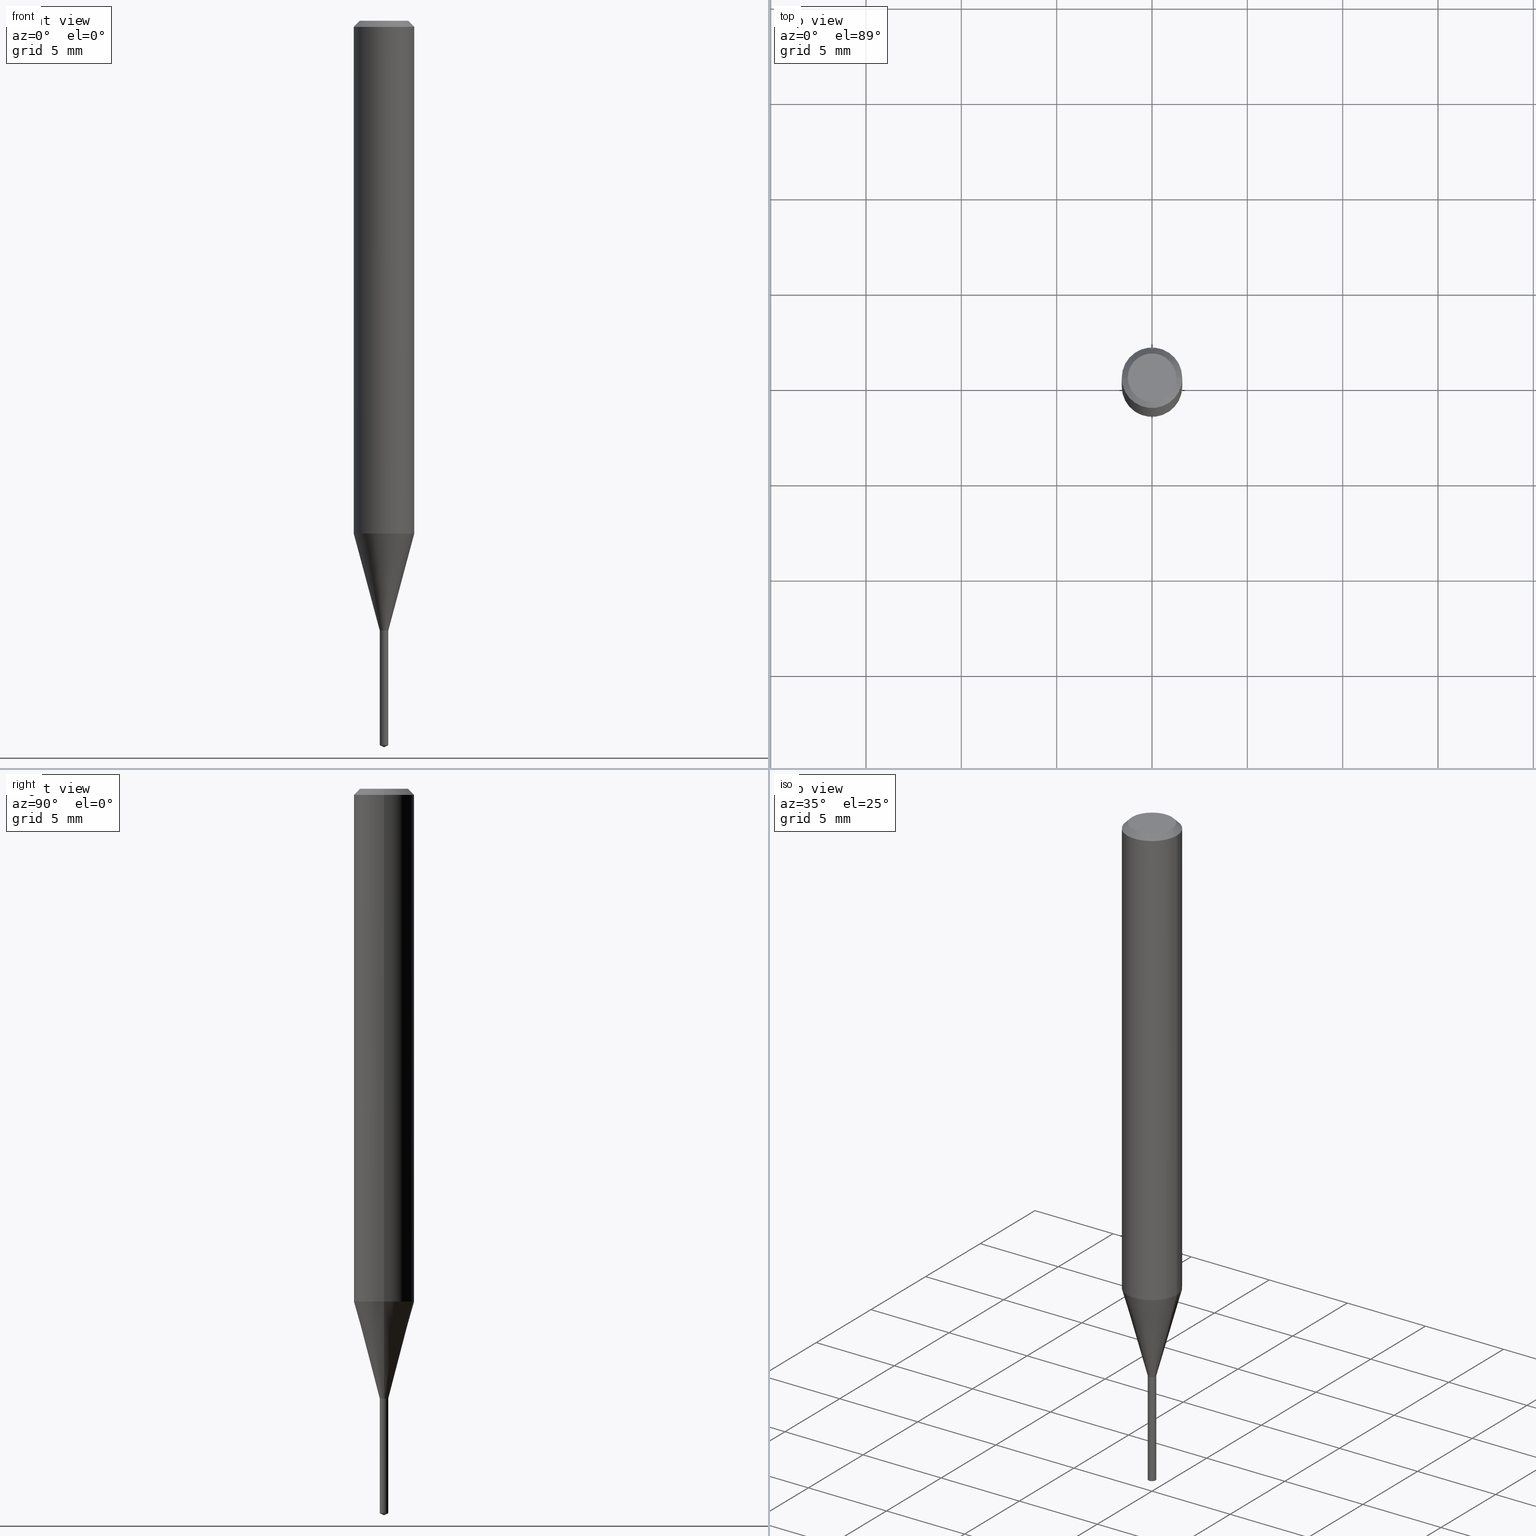
[diagram: canonical four-view strip — front | top / right | iso, engineering-drawing reading convention]
A machine part, canonical four-view strip (front | top / right | iso — engineering-drawing reading convention). The complete STEP part file that produces these views, byte-faithful:
ISO-10303-21;
HEADER;
FILE_DESCRIPTION (( 'STEP AP203' ),
    '1' );
FILE_NAME ('07137.STEP',
    '2024-04-23T19:39:51',
    ( '' ),
    ( '' ),
    'SwSTEP 2.0',
    'SolidWorks 2023',
    '' );
FILE_SCHEMA (( 'CONFIG_CONTROL_DESIGN' ));
ENDSEC;

DATA;
#1 = FACE_OUTER_BOUND ( 'NONE', #304, .T. ) ;
#2 = ORIENTED_EDGE ( 'NONE', *, *, #170, .T. ) ;
#3 = EDGE_CURVE ( 'NONE', #420, #315, #444, .T. ) ;
#4 = LINE ( 'NONE', #314, #151 ) ;
#5 = ORIENTED_EDGE ( 'NONE', *, *, #307, .F. ) ;
#6 = VECTOR ( 'NONE', #362, 39.37007874015748854 ) ;
#7 = DIRECTION ( 'NONE',  ( -2.445468806185136877E-29, 3.491481338843145188E-15, 1.000000000000000000 ) ) ;
#8 = ORIENTED_EDGE ( 'NONE', *, *, #148, .T. ) ;
#9 = DIRECTION ( 'NONE',  ( 1.000000000000000000, -6.982962677686217801E-15, 0.000000000000000000 ) ) ;
#10 = ORIENTED_EDGE ( 'NONE', *, *, #402, .T. ) ;
#11 = DATE_AND_TIME ( #171, #441 ) ;
#12 = ORIENTED_EDGE ( 'NONE', *, *, #325, .F. ) ;
#13 = AXIS2_PLACEMENT_3D ( 'NONE', #24, #446, #259 ) ;
#14 = ORIENTED_EDGE ( 'NONE', *, *, #88, .F. ) ;
#15 = COORDINATED_UNIVERSAL_TIME_OFFSET ( 5, 0, .BEHIND. ) ;
#16 = CARTESIAN_POINT ( 'NONE',  ( 6.288303211479943643E-17, 0.008849999999995637398, -1.250000000000000000 ) ) ;
#17 = MECHANICAL_CONTEXT ( 'NONE', #376, 'mechanical' ) ;
#18 = EDGE_CURVE ( 'NONE', #206, #130, #51, .T. ) ;
#19 = ORIENTED_EDGE ( 'NONE', *, *, #116, .T. ) ;
#20 =( NAMED_UNIT ( * ) SI_UNIT ( $, .STERADIAN. ) SOLID_ANGLE_UNIT ( ) );
#21 = AXIS2_PLACEMENT_3D ( 'NONE', #369, #224, #303 ) ;
#22 = FACE_OUTER_BOUND ( 'NONE', #90, .T. ) ;
#23 = CARTESIAN_POINT ( 'NONE',  ( 3.055613273328328505E-29, -4.362605932884510968E-15, -1.249500000000000055 ) ) ;
#24 = CARTESIAN_POINT ( 'NONE',  ( 3.055613273328328505E-29, -4.362605932884510968E-15, -1.249500000000000055 ) ) ;
#25 = ORIENTED_EDGE ( 'NONE', *, *, #48, .T. ) ;
#26 = EDGE_CURVE ( 'NONE', #47, #200, #431, .T. ) ;
#27 = VECTOR ( 'NONE', #41, 39.37007874015748143 ) ;
#28 = CARTESIAN_POINT ( 'NONE',  ( -0.008850000000000000228, -4.316307437129247394E-15, -1.259000000000000119 ) ) ;
#29 = ADVANCED_BREP_SHAPE_REPRESENTATION ( '07137', ( #241, #406, #127 ), #178 ) ;
#30 = ORIENTED_EDGE ( 'NONE', *, *, #251, .F. ) ;
#31 = DIRECTION ( 'NONE',  ( -2.445468806185136877E-29, 3.491481338843145188E-15, 1.000000000000000000 ) ) ;
#32 = CARTESIAN_POINT ( 'NONE',  ( 3.657123408791909676E-29, -5.224227846641668931E-15, -1.495873177225328643 ) ) ;
#33 = EDGE_CURVE ( 'NONE', #86, #330, #91, .T. ) ;
#34 = CARTESIAN_POINT ( 'NONE',  ( 2.589202394846235411E-29, -3.696694810103098248E-15, -1.058775474173935471 ) ) ;
#35 = LOCAL_TIME ( 15, 39, 51.00000000000000000, #322 ) ;
#36 = CONICAL_SURFACE ( 'NONE', #21, 0.008349999999999999784, 0.7853981633975486432 ) ;
#37 = DIRECTION ( 'NONE',  ( 1.000000000000000000, -6.982962677686265922E-15, 4.876194921942043128E-29 ) ) ;
#38 = EDGE_LOOP ( 'NONE', ( #126, #454, #271, #388 ) ) ;
#39 = DIRECTION ( 'NONE',  ( -6.982962677686265133E-15, -1.000000000000000000, 0.000000000000000000 ) ) ;
#40 = ORIENTED_EDGE ( 'NONE', *, *, #132, .F. ) ;
#41 = DIRECTION ( 'NONE',  ( 6.439704144417068218E-15, 0.9063077870366574862, 0.4226182617406830100 ) ) ;
#42 = VERTEX_POINT ( 'NONE', #323 ) ;
#43 = AXIS2_PLACEMENT_3D ( 'NONE', #320, #404, #475 ) ;
#44 = DIRECTION ( 'NONE',  ( 1.000000000000000000, -6.982962677686217801E-15, 0.000000000000000000 ) ) ;
#45 = ORIENTED_EDGE ( 'NONE', *, *, #209, .T. ) ;
#46 = DATE_AND_TIME ( #329, #95 ) ;
#47 = VERTEX_POINT ( 'NONE', #214 ) ;
#48 = EDGE_CURVE ( 'NONE', #330, #189, #436, .T. ) ;
#49 = DIRECTION ( 'NONE',  ( 1.000000000000000000, -6.982962677686266711E-15, 4.876176775795935793E-29 ) ) ;
#50 = PERSON ( 'UNSPECIFIED', 'UNSPECIFIED', 'UNSPECIFIED', ('UNSPECIFIED'), ('UNSPECIFIED'), ('UNSPECIFIED') ) ;
#51 = CIRCLE ( 'NONE', #474, 0.008850000000000000228 ) ;
#52 = AXIS2_PLACEMENT_3D ( 'NONE', #122, #316, #163 ) ;
#53 = ORIENTED_EDGE ( 'NONE', *, *, #33, .F. ) ;
#54 = ADVANCED_FACE ( 'NONE', ( #93 ), #473, .F. ) ;
#55 = LINE ( 'NONE', #215, #465 ) ;
#56 = CARTESIAN_POINT ( 'NONE',  ( -9.245293313918838015E-28, 1.324477397370918293E-13, 37.87007874015748143 ) ) ;
#57 = COORDINATED_UNIVERSAL_TIME_OFFSET ( 5, 0, .BEHIND. ) ;
#58 = CARTESIAN_POINT ( 'NONE',  ( 0.008849999999999998493, -4.424405152582034561E-15, -1.249500000000000055 ) ) ;
#59 = CC_DESIGN_APPROVAL ( #263, ( #352 ) ) ;
#60 = CIRCLE ( 'NONE', #80, 0.008850000000000001962 ) ;
#61 = CARTESIAN_POINT ( 'NONE',  ( 0.000000000000000000, 0.000000000000000000, 0.000000000000000000 ) ) ;
#62 = LOCAL_TIME ( 15, 39, 51.00000000000000000, #57 ) ;
#63 = SHAPE_DEFINITION_REPRESENTATION ( #442, #29 ) ;
#64 = DIRECTION ( 'NONE',  ( 1.000000000000000000, -6.982962677686265922E-15, 4.876176775795935232E-29 ) ) ;
#65 = ADVANCED_FACE ( 'NONE', ( #245 ), #401, .T. ) ;
#66 = EDGE_LOOP ( 'NONE', ( #354, #78, #45, #338 ) ) ;
#67 = DIRECTION ( 'NONE',  ( -6.328713451373412766E-15, -0.9063077870366545996, 0.4226182617406893383 ) ) ;
#68 = DIRECTION ( 'NONE',  ( 1.000000000000000000, -6.982962677686266711E-15, 0.000000000000000000 ) ) ;
#69 = CLOSED_SHELL ( 'NONE', ( #295, #385, #79, #318, #287, #54, #234, #94, #371, #300, #108, #216 ) ) ;
#70 = VECTOR ( 'NONE', #337, 39.37007874015748854 ) ;
#71 = ADVANCED_FACE ( 'NONE', ( #217 ), #387, .T. ) ;
#72 = CALENDAR_DATE ( 2024, 23, 4 ) ;
#73 = LINE ( 'NONE', #261, #328 ) ;
#74 = EDGE_LOOP ( 'NONE', ( #433, #8 ) ) ;
#75 = PLANE ( 'NONE',  #378 ) ;
#76 = CARTESIAN_POINT ( 'NONE',  ( -0.008349999999999999784, -4.302372127943853128E-15, -1.250000000000000000 ) ) ;
#77 = CONICAL_SURFACE ( 'NONE', #395, 0.06250000000000000000, 0.7853981633974449483 ) ;
#78 = ORIENTED_EDGE ( 'NONE', *, *, #325, .T. ) ;
#79 = ADVANCED_FACE ( 'NONE', ( #438 ), #99, .T. ) ;
#80 = AXIS2_PLACEMENT_3D ( 'NONE', #32, #298, #103 ) ;
#81 = CARTESIAN_POINT ( 'NONE',  ( -0.06250000000000000000, -1.426079953569255105E-15, -0.01250000000000008570 ) ) ;
#82 = VERTEX_POINT ( 'NONE', #58 ) ;
#83 = CARTESIAN_POINT ( 'NONE',  ( 3.056836007731441853E-31, -4.364351673553962300E-17, -0.01250000000000008570 ) ) ;
#84 = ORIENTED_EDGE ( 'NONE', *, *, #196, .T. ) ;
#85 = CARTESIAN_POINT ( 'NONE',  ( 3.078845226987087249E-29, -4.395775005603521113E-15, -1.259000000000000119 ) ) ;
#86 = VERTEX_POINT ( 'NONE', #243 ) ;
#87 = AXIS2_PLACEMENT_3D ( 'NONE', #458, #379, #419 ) ;
#88 = EDGE_CURVE ( 'NONE', #206, #184, #393, .T. ) ;
#89 = CARTESIAN_POINT ( 'NONE',  ( 3.056836007731421306E-29, -4.364351673553932471E-15, -1.250000000000000000 ) ) ;
#90 = EDGE_LOOP ( 'NONE', ( #242, #159, #277, #429 ) ) ;
#91 = LINE ( 'NONE', #212, #128 ) ;
#92 = CARTESIAN_POINT ( 'NONE',  ( 0.000000000000000000, 0.000000000000000000, 0.000000000000000000 ) ) ;
#93 = FACE_OUTER_BOUND ( 'NONE', #409, .T. ) ;
#94 = ADVANCED_FACE ( 'NONE', ( #22 ), #181, .T. ) ;
#95 = LOCAL_TIME ( 15, 39, 51.00000000000000000, #15 ) ;
#96 = DIRECTION ( 'NONE',  ( 1.000000000000000000, -6.982962677686217801E-15, 0.000000000000000000 ) ) ;
#97 = APPROVAL ( #430, 'UNSPECIFIED' ) ;
#98 = PERSON_AND_ORGANIZATION ( #50, #195 ) ;
#99 = CYLINDRICAL_SURFACE ( 'NONE', #240, 0.06250000000000006939 ) ;
#100 = FACE_OUTER_BOUND ( 'NONE', #309, .T. ) ;
#101 = PRODUCT ( '07137', '07137', '', ( #17 ) ) ;
#102 = VECTOR ( 'NONE', #182, 39.37007874015748143 ) ;
#103 = DIRECTION ( 'NONE',  ( -6.982962677686265922E-15, -1.000000000000000000, 0.000000000000000000 ) ) ;
#104 = APPROVAL_STATUS ( 'not_yet_approved' ) ;
#105 = FACE_OUTER_BOUND ( 'NONE', #74, .T. ) ;
#106 = APPROVAL_DATE_TIME ( #186, #173 ) ;
#107 = DIRECTION ( 'NONE',  ( -6.982962677686265922E-15, -1.000000000000000000, 0.000000000000000000 ) ) ;
#108 = ADVANCED_FACE ( 'NONE', ( #100 ), #254, .F. ) ;
#109 = LINE ( 'NONE', #339, #451 ) ;
#110 = AXIS2_PLACEMENT_3D ( 'NONE', #139, #286, #396 ) ;
#111 = CC_DESIGN_PERSON_AND_ORGANIZATION_ASSIGNMENT ( #98, #134, ( #428 ) ) ;
#112 = CARTESIAN_POINT ( 'NONE',  ( -6.179921969749288897E-17, -0.008850000000004364792, -1.250000000000000000 ) ) ;
#113 = CARTESIAN_POINT ( 'NONE',  ( -0.008349999999999999784, -4.305021355117964329E-15, -1.250000000000000000 ) ) ;
#114 = ORIENTED_EDGE ( 'NONE', *, *, #185, .F. ) ;
#115 = CARTESIAN_POINT ( 'NONE',  ( 3.056836007731441853E-31, -4.364351673553962300E-17, -0.01250000000000008570 ) ) ;
#116 = EDGE_CURVE ( 'NONE', #189, #330, #321, .T. ) ;
#117 = AXIS2_PLACEMENT_3D ( 'NONE', #115, #305, #453 ) ;
#118 = ORIENTED_EDGE ( 'NONE', *, *, #460, .T. ) ;
#119 = CIRCLE ( 'NONE', #247, 0.04999999999999999584 ) ;
#120 = CARTESIAN_POINT ( 'NONE',  ( 3.672308733861464435E-29, -5.231468785813241448E-15, -1.500000000000000222 ) ) ;
#121 = VERTEX_POINT ( 'NONE', #225 ) ;
#122 = CARTESIAN_POINT ( 'NONE',  ( -4.132873053354867254E-48, 5.900647395337818946E-34, 1.690012582823346072E-19 ) ) ;
#123 = ORIENTED_EDGE ( 'NONE', *, *, #417, .T. ) ;
#124 = CC_DESIGN_PERSON_AND_ORGANIZATION_ASSIGNMENT ( #353, #358, ( #101 ) ) ;
#125 = CARTESIAN_POINT ( 'NONE',  ( 0.06250000000000000000, -4.724246415962603826E-16, -0.01250000000000008570 ) ) ;
#126 = ORIENTED_EDGE ( 'NONE', *, *, #394, .T. ) ;
#127 = AXIS2_PLACEMENT_3D ( 'NONE', #92, #389, #432 ) ;
#128 = VECTOR ( 'NONE', #471, 39.37007874015748143 ) ;
#129 = CC_DESIGN_SECURITY_CLASSIFICATION ( #279, ( #428 ) ) ;
#130 = VERTEX_POINT ( 'NONE', #480 ) ;
#131 = DATE_AND_TIME ( #140, #35 ) ;
#132 = EDGE_CURVE ( 'NONE', #370, #47, #179, .T. ) ;
#133 = DIRECTION ( 'NONE',  ( 1.000000000000000000, -6.982962677686265922E-15, 4.876176775795935232E-29 ) ) ;
#134 = PERSON_AND_ORGANIZATION_ROLE ( 'creator' ) ;
#135 = DIRECTION ( 'NONE',  ( -2.445468806185136597E-29, 3.491481338843145583E-15, 1.000000000000000000 ) ) ;
#136 = PRODUCT_RELATED_PRODUCT_CATEGORY ( 'detail', '', ( #101 ) ) ;
#137 = AXIS2_PLACEMENT_3D ( 'NONE', #152, #264, #64 ) ;
#138 = APPROVAL_ROLE ( '' ) ;
#139 = CARTESIAN_POINT ( 'NONE',  ( 3.056836007731421306E-29, -4.364351673553932471E-15, -1.250000000000000000 ) ) ;
#140 = CALENDAR_DATE ( 2024, 23, 4 ) ;
#141 = ORIENTED_EDGE ( 'NONE', *, *, #18, .F. ) ;
#142 = UNCERTAINTY_MEASURE_WITH_UNIT (LENGTH_MEASURE( 1.000000000000000082E-05 ), #211, 'distance_accuracy_value', 'NONE');
#143 = CC_DESIGN_PERSON_AND_ORGANIZATION_ASSIGNMENT ( #477, #213, ( #352 ) ) ;
#144 = CARTESIAN_POINT ( 'NONE',  ( 3.657123408791909676E-29, -5.224227846641668931E-15, -1.495873177225328643 ) ) ;
#145 = DIRECTION ( 'NONE',  ( -2.445468806185136877E-29, 3.491481338843145188E-15, 1.000000000000000000 ) ) ;
#146 = VERTEX_POINT ( 'NONE', #367 ) ;
#147 = DIRECTION ( 'NONE',  ( -2.445468806185136597E-29, 3.491481338843145583E-15, 1.000000000000000000 ) ) ;
#148 = EDGE_CURVE ( 'NONE', #200, #42, #457, .T. ) ;
#149 = ORIENTED_EDGE ( 'NONE', *, *, #132, .T. ) ;
#150 = FACE_OUTER_BOUND ( 'NONE', #351, .T. ) ;
#151 = VECTOR ( 'NONE', #461, 39.37007874015748854 ) ;
#152 = CARTESIAN_POINT ( 'NONE',  ( 0.000000000000000000, 0.000000000000000000, 0.000000000000000000 ) ) ;
#153 = AXIS2_PLACEMENT_3D ( 'NONE', #56, #359, #289 ) ;
#154 = CONICAL_SURFACE ( 'NONE', #117, 0.06250000000000000000, 0.7853981633974449483 ) ;
#155 = ORIENTED_EDGE ( 'NONE', *, *, #157, .F. ) ;
#156 = DIRECTION ( 'NONE',  ( -2.445468806185136597E-29, 3.491481338843145583E-15, 1.000000000000000000 ) ) ;
#157 = EDGE_CURVE ( 'NONE', #130, #82, #188, .T. ) ;
#158 = FACE_OUTER_BOUND ( 'NONE', #483, .T. ) ;
#159 = ORIENTED_EDGE ( 'NONE', *, *, #280, .T. ) ;
#160 = DIRECTION ( 'NONE',  ( -2.445468806185136597E-29, 3.491481338843145583E-15, 1.000000000000000000 ) ) ;
#161 = ORIENTED_EDGE ( 'NONE', *, *, #26, .T. ) ;
#162 = VECTOR ( 'NONE', #249, 39.37007874015748143 ) ;
#163 = DIRECTION ( 'NONE',  ( -1.000000000000000000, 6.982962677686265922E-15, -4.876176775795935793E-29 ) ) ;
#164 = EDGE_LOOP ( 'NONE', ( #418, #349, #40 ) ) ;
#165 = ADVANCED_FACE ( 'NONE', ( #105 ), #75, .F. ) ;
#166 = CARTESIAN_POINT ( 'NONE',  ( -9.245293313918838015E-28, 1.324477397370918293E-13, 37.87007874015748143 ) ) ;
#167 = VERTEX_POINT ( 'NONE', #190 ) ;
#168 = PERSON_AND_ORGANIZATION_ROLE ( 'design_supplier' ) ;
#169 = DIRECTION ( 'NONE',  ( -2.438088387897960049E-29, 3.491481338843145188E-15, 1.000000000000000000 ) ) ;
#170 = EDGE_CURVE ( 'NONE', #184, #330, #73, .T. ) ;
#171 = CALENDAR_DATE ( 2024, 23, 4 ) ;
#172 = DIRECTION ( 'NONE',  ( -2.445468806185136597E-29, 3.491481338843145583E-15, 1.000000000000000000 ) ) ;
#173 = APPROVAL ( #104, 'UNSPECIFIED' ) ;
#174 = APPROVAL_DATE_TIME ( #46, #263 ) ;
#175 = DIRECTION ( 'NONE',  ( -2.445468806185136597E-29, 3.491481338843145583E-15, 1.000000000000000000 ) ) ;
#176 = APPLICATION_PROTOCOL_DEFINITION ( 'international standard', 'config_control_design', 1994, #485 ) ;
#177 = ORIENTED_EDGE ( 'NONE', *, *, #332, .T. ) ;
#178 =( GEOMETRIC_REPRESENTATION_CONTEXT ( 3 ) GLOBAL_UNCERTAINTY_ASSIGNED_CONTEXT ( ( #142 ) ) GLOBAL_UNIT_ASSIGNED_CONTEXT ( ( #211, #356, #20 ) ) REPRESENTATION_CONTEXT ( 'NONE', 'WORKASPACE' ) );
#179 = CIRCLE ( 'NONE', #335, 0.008850000000000001962 ) ;
#180 = PERSON_AND_ORGANIZATION ( #50, #195 ) ;
#181 = CYLINDRICAL_SURFACE ( 'NONE', #194, 0.06250000000000006939 ) ;
#182 = DIRECTION ( 'NONE',  ( -2.441451352419627030E-29, 3.497234561294623100E-15, 1.000000000000000000 ) ) ;
#183 = CARTESIAN_POINT ( 'NONE',  ( -0.06250000000000013878, -3.252605600253034449E-15, -1.058775474173935471 ) ) ;
#184 = VERTEX_POINT ( 'NONE', #183 ) ;
#185 = EDGE_CURVE ( 'NONE', #82, #167, #268, .T. ) ;
#186 = DATE_AND_TIME ( #72, #227 ) ;
#187 = CONICAL_SURFACE ( 'NONE', #218, 0.008850000000000000228, 0.2617993877991569573 ) ;
#188 = LINE ( 'NONE', #296, #489 ) ;
#189 = VERTEX_POINT ( 'NONE', #410 ) ;
#190 = CARTESIAN_POINT ( 'NONE',  ( -0.008849999999999998493, -4.316307437129247394E-15, -1.249500000000000055 ) ) ;
#191 = DIRECTION ( 'NONE',  ( -2.445468806185136597E-29, 3.491481338843145583E-15, 1.000000000000000000 ) ) ;
#192 = CIRCLE ( 'NONE', #310, 0.06250000000000013878 ) ;
#193 = DIRECTION ( 'NONE',  ( 1.000000000000000000, -6.982962677686262766E-15, 0.000000000000000000 ) ) ;
#194 = AXIS2_PLACEMENT_3D ( 'NONE', #435, #291, #49 ) ;
#195 = ORGANIZATION ( 'UNSPECIFIED', 'UNSPECIFIED', '' ) ;
#196 = EDGE_CURVE ( 'NONE', #146, #370, #109, .T. ) ;
#197 = LINE ( 'NONE', #113, #403 ) ;
#198 = ORIENTED_EDGE ( 'NONE', *, *, #411, .T. ) ;
#199 = CARTESIAN_POINT ( 'NONE',  ( 3.078845226987087249E-29, -4.395775005603521113E-15, -1.259000000000000119 ) ) ;
#200 = VERTEX_POINT ( 'NONE', #452 ) ;
#201 = EDGE_CURVE ( 'NONE', #167, #82, #466, .T. ) ;
#202 = PLANE ( 'NONE',  #52 ) ;
#203 = ORIENTED_EDGE ( 'NONE', *, *, #3, .T. ) ;
#204 = AXIS2_PLACEMENT_3D ( 'NONE', #89, #273, #39 ) ;
#205 = DIRECTION ( 'NONE',  ( 0.7071067811865451302, -7.319954787623248157E-15, -0.7071067811865499042 ) ) ;
#206 = VERTEX_POINT ( 'NONE', #28 ) ;
#207 = EDGE_LOOP ( 'NONE', ( #269, #360, #440, #25 ) ) ;
#208 = CARTESIAN_POINT ( 'NONE',  ( 3.056836007731441853E-31, -4.364351673553962300E-17, -0.01250000000000008570 ) ) ;
#209 = EDGE_CURVE ( 'NONE', #420, #82, #374, .T. ) ;
#210 = CIRCLE ( 'NONE', #481, 0.008349999999999999784 ) ;
#211 =( CONVERSION_BASED_UNIT ( 'INCH', #244 ) LENGTH_UNIT ( ) NAMED_UNIT ( #274 ) );
#212 = CARTESIAN_POINT ( 'NONE',  ( -0.06250000000000000000, 3.927916506198520587E-16, -0.01250000000000008570 ) ) ;
#213 = PERSON_AND_ORGANIZATION_ROLE ( 'creator' ) ;
#214 = CARTESIAN_POINT ( 'NONE',  ( 6.288303211480543917E-17, 0.008849999999994776975, -1.495873177225328643 ) ) ;
#215 = CARTESIAN_POINT ( 'NONE',  ( 0.06250000000000006939, -4.364351673553921624E-16, 3.047610484872463374E-30 ) ) ;
#216 = ADVANCED_FACE ( 'NONE', ( #262 ), #36, .T. ) ;
#217 = FACE_OUTER_BOUND ( 'NONE', #164, .T. ) ;
#218 = AXIS2_PLACEMENT_3D ( 'NONE', #85, #235, #9 ) ;
#219 = APPROVAL_PERSON_ORGANIZATION ( #257, #173, #297 ) ;
#220 = DIRECTION ( 'NONE',  ( 1.000000000000000000, -6.982962677686266711E-15, 4.876176775795935793E-29 ) ) ;
#221 = CARTESIAN_POINT ( 'NONE',  ( 3.078845226987087249E-29, -4.395775005603521113E-15, -1.259000000000000119 ) ) ;
#222 = DIRECTION ( 'NONE',  ( -2.445468806185136597E-29, 3.491481338843145583E-15, 1.000000000000000000 ) ) ;
#223 = DIRECTION ( 'NONE',  ( -2.441451352419627310E-29, 3.497234561294623100E-15, 1.000000000000000000 ) ) ;
#224 = DIRECTION ( 'NONE',  ( -2.445468806185136597E-29, 3.491481338843145583E-15, 1.000000000000000000 ) ) ;
#225 = CARTESIAN_POINT ( 'NONE',  ( 0.04999999999999999584, -4.077247707424184705E-16, 3.380025165673154903E-19 ) ) ;
#226 = EDGE_CURVE ( 'NONE', #370, #42, #484, .T. ) ;
#227 = LOCAL_TIME ( 15, 39, 51.00000000000000000, #302 ) ;
#228 = AXIS2_PLACEMENT_3D ( 'NONE', #399, #175, #327 ) ;
#229 = CARTESIAN_POINT ( 'NONE',  ( -0.008850000000000000228, 6.288303211476886807E-17, -4.353257554875591324E-31 ) ) ;
#230 = CIRCLE ( 'NONE', #348, 0.06250000000000013878 ) ;
#231 = EDGE_LOOP ( 'NONE', ( #368, #84, #30 ) ) ;
#232 = CARTESIAN_POINT ( 'NONE',  ( 3.056836007731421306E-29, -4.364351673553932471E-15, -1.250000000000000000 ) ) ;
#233 = ORIENTED_EDGE ( 'NONE', *, *, #148, .F. ) ;
#234 = ADVANCED_FACE ( 'NONE', ( #482 ), #363, .T. ) ;
#235 = DIRECTION ( 'NONE',  ( -2.445468806185136597E-29, 3.491481338843145583E-15, 1.000000000000000000 ) ) ;
#236 = ORIENTED_EDGE ( 'NONE', *, *, #201, .T. ) ;
#237 = AXIS2_PLACEMENT_3D ( 'NONE', #490, #160, #347 ) ;
#238 = FACE_OUTER_BOUND ( 'NONE', #207, .T. ) ;
#239 = ORIENTED_EDGE ( 'NONE', *, *, #209, .F. ) ;
#240 = AXIS2_PLACEMENT_3D ( 'NONE', #478, #135, #220 ) ;
#241 = MANIFOLD_SOLID_BREP ( 'Body-Move/Copy2[1]', #311 ) ;
#242 = ORIENTED_EDGE ( 'NONE', *, *, #170, .F. ) ;
#243 = CARTESIAN_POINT ( 'NONE',  ( -0.04999999999999999584, 3.709698922520826725E-16, 3.380025165621512536E-19 ) ) ;
#244 = LENGTH_MEASURE_WITH_UNIT ( LENGTH_MEASURE( 0.02539999999999999897 ), #361 );
#245 = FACE_OUTER_BOUND ( 'NONE', #357, .T. ) ;
#246 = AXIS2_PLACEMENT_3D ( 'NONE', #166, #276, #416 ) ;
#247 = AXIS2_PLACEMENT_3D ( 'NONE', #265, #156, #37 ) ;
#248 = PERSON_AND_ORGANIZATION ( #50, #195 ) ;
#249 = DIRECTION ( 'NONE',  ( -2.441451352419627030E-29, 3.497234561294623100E-15, 1.000000000000000000 ) ) ;
#250 = DESIGN_CONTEXT ( 'detailed design', #485, 'design' ) ;
#251 = EDGE_CURVE ( 'NONE', #47, #370, #60, .T. ) ;
#252 = PERSON_AND_ORGANIZATION_ROLE ( 'classification_officer' ) ;
#253 = DIRECTION ( 'NONE',  ( -2.445468806185136597E-29, 3.491481338843145583E-15, 1.000000000000000000 ) ) ;
#254 = PLANE ( 'NONE',  #278 ) ;
#255 = APPROVAL_PERSON_ORGANIZATION ( #180, #263, #138 ) ;
#256 = AXIS2_PLACEMENT_3D ( 'NONE', #61, #253, #133 ) ;
#257 = PERSON_AND_ORGANIZATION ( #50, #195 ) ;
#258 = DIRECTION ( 'NONE',  ( 1.000000000000000000, -6.982962677686210701E-15, 0.000000000000000000 ) ) ;
#259 = DIRECTION ( 'NONE',  ( 1.000000000000000000, -6.982962677686273021E-15, 0.000000000000000000 ) ) ;
#260 = CC_DESIGN_PERSON_AND_ORGANIZATION_ASSIGNMENT ( #398, #252, ( #279 ) ) ;
#261 = CARTESIAN_POINT ( 'NONE',  ( -0.06250000000000006939, 4.440892098500631092E-16, -3.074334431409319267E-30 ) ) ;
#262 = FACE_OUTER_BOUND ( 'NONE', #66, .T. ) ;
#263 = APPROVAL ( #434, 'UNSPECIFIED' ) ;
#264 = DIRECTION ( 'NONE',  ( -2.445468806185136597E-29, 3.491481338843145583E-15, 1.000000000000000000 ) ) ;
#265 = CARTESIAN_POINT ( 'NONE',  ( -8.265746106709734507E-48, 1.180129479067563789E-33, 3.380025165646692144E-19 ) ) ;
#266 = EDGE_LOOP ( 'NONE', ( #203, #123, #114, #239 ) ) ;
#267 = CARTESIAN_POINT ( 'NONE',  ( 0.008349999999999999784, -4.422659411912612268E-15, -1.250000000000000000 ) ) ;
#268 = CIRCLE ( 'NONE', #13, 0.008849999999999998493 ) ;
#269 = ORIENTED_EDGE ( 'NONE', *, *, #366, .F. ) ;
#270 = DIRECTION ( 'NONE',  ( 1.000000000000000000, -6.982962677686210701E-15, 0.000000000000000000 ) ) ;
#271 = ORIENTED_EDGE ( 'NONE', *, *, #460, .F. ) ;
#272 = CC_DESIGN_DATE_AND_TIME_ASSIGNMENT ( #11, #400, ( #352 ) ) ;
#273 = DIRECTION ( 'NONE',  ( -2.441451352419627310E-29, 3.497234561294623100E-15, 1.000000000000000000 ) ) ;
#274 = DIMENSIONAL_EXPONENTS ( 1.000000000000000000, 0.000000000000000000, 0.000000000000000000, 0.000000000000000000, 0.000000000000000000, 0.000000000000000000, 0.000000000000000000 ) ;
#275 = ORIENTED_EDGE ( 'NONE', *, *, #411, .F. ) ;
#276 = DIRECTION ( 'NONE',  ( -2.441451352419627310E-29, 3.497234561294623100E-15, 1.000000000000000000 ) ) ;
#277 = ORIENTED_EDGE ( 'NONE', *, *, #488, .T. ) ;
#278 = AXIS2_PLACEMENT_3D ( 'NONE', #365, #169, #469 ) ;
#279 = SECURITY_CLASSIFICATION ( '', '', #285 ) ;
#280 = EDGE_CURVE ( 'NONE', #184, #422, #230, .T. ) ;
#281 = APPLICATION_PROTOCOL_DEFINITION ( 'international standard', 'config_control_design', 1994, #376 ) ;
#282 = CARTESIAN_POINT ( 'NONE',  ( 3.078845226987087249E-29, -4.395775005603521113E-15, -1.259000000000000119 ) ) ;
#283 = APPROVAL_DATE_TIME ( #131, #97 ) ;
#284 = DIRECTION ( 'NONE',  ( -2.445468806185136597E-29, 3.491481338843145583E-15, 1.000000000000000000 ) ) ;
#285 = SECURITY_CLASSIFICATION_LEVEL ( 'unclassified' ) ;
#286 = DIRECTION ( 'NONE',  ( -2.441451352419627310E-29, 3.497234561294623100E-15, 1.000000000000000000 ) ) ;
#287 = ADVANCED_FACE ( 'NONE', ( #150 ), #486, .F. ) ;
#288 = AXIS2_PLACEMENT_3D ( 'NONE', #415, #223, #336 ) ;
#289 = DIRECTION ( 'NONE',  ( -6.982962677686267499E-15, -1.000000000000000000, 3.520397390770334752E-15 ) ) ;
#290 = CALENDAR_DATE ( 2024, 23, 4 ) ;
#291 = DIRECTION ( 'NONE',  ( -2.445468806185136597E-29, 3.491481338843145583E-15, 1.000000000000000000 ) ) ;
#292 = DIRECTION ( 'NONE',  ( -2.445468806185136597E-29, 3.491481338843145583E-15, 1.000000000000000000 ) ) ;
#293 = VECTOR ( 'NONE', #205, 39.37007874015748143 ) ;
#294 = AXIS2_PLACEMENT_3D ( 'NONE', #479, #292, #258 ) ;
#295 = ADVANCED_FACE ( 'NONE', ( #331 ), #397, .T. ) ;
#296 = CARTESIAN_POINT ( 'NONE',  ( 0.008850000000000000228, -6.179921969752345733E-17, 4.315416446579402924E-31 ) ) ;
#297 = APPROVAL_ROLE ( '' ) ;
#298 = DIRECTION ( 'NONE',  ( -2.441451352419627310E-29, 3.497234561294623100E-15, 1.000000000000000000 ) ) ;
#299 = DIRECTION ( 'NONE',  ( 2.441451352419626749E-29, -3.497234561294623100E-15, -1.000000000000000000 ) ) ;
#300 = ADVANCED_FACE ( 'NONE', ( #158 ), #202, .F. ) ;
#301 = AXIS2_PLACEMENT_3D ( 'NONE', #208, #172, #68 ) ;
#302 = COORDINATED_UNIVERSAL_TIME_OFFSET ( 5, 0, .BEHIND. ) ;
#303 = DIRECTION ( 'NONE',  ( 1.000000000000000000, -6.982962677686210701E-15, 0.000000000000000000 ) ) ;
#304 = EDGE_LOOP ( 'NONE', ( #275, #313, #19, #53 ) ) ;
#305 = DIRECTION ( 'NONE',  ( 2.445468806185136597E-29, -3.491481338843145583E-15, -1.000000000000000000 ) ) ;
#306 = ORIENTED_EDGE ( 'NONE', *, *, #251, .T. ) ;
#307 = EDGE_CURVE ( 'NONE', #42, #200, #413, .T. ) ;
#308 = CYLINDRICAL_SURFACE ( 'NONE', #87, 0.008850000000000000228 ) ;
#309 = EDGE_LOOP ( 'NONE', ( #317, #12 ) ) ;
#310 = AXIS2_PLACEMENT_3D ( 'NONE', #34, #383, #193 ) ;
#311 = CLOSED_SHELL ( 'NONE', ( #65, #71, #423, #470, #165 ) ) ;
#312 = FACE_OUTER_BOUND ( 'NONE', #373, .T. ) ;
#313 = ORIENTED_EDGE ( 'NONE', *, *, #366, .T. ) ;
#314 = CARTESIAN_POINT ( 'NONE',  ( 0.008850000000000000228, -4.457574225301043917E-15, -1.259000000000000119 ) ) ;
#315 = VERTEX_POINT ( 'NONE', #76 ) ;
#316 = DIRECTION ( 'NONE',  ( 2.438088387897960049E-29, -3.491481338843145188E-15, -1.000000000000000000 ) ) ;
#317 = ORIENTED_EDGE ( 'NONE', *, *, #3, .F. ) ;
#318 = ADVANCED_FACE ( 'NONE', ( #424 ), #187, .T. ) ;
#319 = DATE_AND_TIME ( #290, #62 ) ;
#320 = CARTESIAN_POINT ( 'NONE',  ( 3.056836007731441853E-31, -4.364351673553962300E-17, -0.01250000000000008570 ) ) ;
#321 = CIRCLE ( 'NONE', #301, 0.06250000000000000000 ) ;
#322 = COORDINATED_UNIVERSAL_TIME_OFFSET ( 5, 0, .BEHIND. ) ;
#323 = CARTESIAN_POINT ( 'NONE',  ( -6.179921969749288897E-17, -0.008850000000004364792, -1.250000000000000000 ) ) ;
#324 = PERSON_AND_ORGANIZATION ( #50, #195 ) ;
#325 = EDGE_CURVE ( 'NONE', #315, #420, #210, .T. ) ;
#326 = CARTESIAN_POINT ( 'NONE',  ( -0.008850000000000000228, -4.332891973488752073E-15, -1.259000000000000119 ) ) ;
#327 = DIRECTION ( 'NONE',  ( 1.000000000000000000, -6.982962677686210701E-15, 0.000000000000000000 ) ) ;
#328 = VECTOR ( 'NONE', #145, 39.37007874015748143 ) ;
#329 = CALENDAR_DATE ( 2024, 23, 4 ) ;
#330 = VERTEX_POINT ( 'NONE', #81 ) ;
#331 = FACE_OUTER_BOUND ( 'NONE', #266, .T. ) ;
#332 = EDGE_CURVE ( 'NONE', #86, #121, #119, .T. ) ;
#333 = CARTESIAN_POINT ( 'NONE',  ( 3.056836007731421306E-29, -4.364351673553932471E-15, -1.250000000000000000 ) ) ;
#334 = CIRCLE ( 'NONE', #468, 0.008850000000000000228 ) ;
#335 = AXIS2_PLACEMENT_3D ( 'NONE', #144, #412, #107 ) ;
#336 = DIRECTION ( 'NONE',  ( -6.982962677686265133E-15, -1.000000000000000000, 0.000000000000000000 ) ) ;
#337 = DIRECTION ( 'NONE',  ( 0.7071067811866184050, -2.468850131082999773E-15, 0.7071067811864765185 ) ) ;
#338 = ORIENTED_EDGE ( 'NONE', *, *, #201, .F. ) ;
#339 = CARTESIAN_POINT ( 'NONE',  ( 3.662177028629440404E-29, -5.245851841941935241E-15, -1.500000000000000222 ) ) ;
#340 = VECTOR ( 'NONE', #7, 39.37007874015748143 ) ;
#341 = LINE ( 'NONE', #120, #27 ) ;
#342 = LINE ( 'NONE', #125, #293 ) ;
#343 = ORIENTED_EDGE ( 'NONE', *, *, #439, .T. ) ;
#344 = CC_DESIGN_PERSON_AND_ORGANIZATION_ASSIGNMENT ( #248, #168, ( #428 ) ) ;
#345 = DIRECTION ( 'NONE',  ( -2.445468806185136597E-29, 3.491481338843145583E-15, 1.000000000000000000 ) ) ;
#346 = ORIENTED_EDGE ( 'NONE', *, *, #26, .F. ) ;
#347 = DIRECTION ( 'NONE',  ( 1.000000000000000000, -6.982962677686265922E-15, 4.876194921942043128E-29 ) ) ;
#348 = AXIS2_PLACEMENT_3D ( 'NONE', #408, #191, #448 ) ;
#349 = ORIENTED_EDGE ( 'NONE', *, *, #476, .T. ) ;
#350 = CARTESIAN_POINT ( 'NONE',  ( 0.06250000000000013878, -4.133129977458490706E-15, -1.058775474173935471 ) ) ;
#351 = EDGE_LOOP ( 'NONE', ( #141, #343, #236, #155 ) ) ;
#352 = PRODUCT_DEFINITION ( 'UNKNOWN', '', #428, #250 ) ;
#353 = PERSON_AND_ORGANIZATION ( #50, #195 ) ;
#354 = ORIENTED_EDGE ( 'NONE', *, *, #417, .F. ) ;
#355 = CONICAL_SURFACE ( 'NONE', #246, 84.42940631927719153, 1.134464013796328885 ) ;
#356 =( NAMED_UNIT ( * ) PLANE_ANGLE_UNIT ( ) SI_UNIT ( $, .RADIAN. ) );
#357 = EDGE_LOOP ( 'NONE', ( #149, #161, #5, #456 ) ) ;
#358 = PERSON_AND_ORGANIZATION_ROLE ( 'design_owner' ) ;
#359 = DIRECTION ( 'NONE',  ( -2.441451352419627310E-29, 3.497234561294623100E-15, 1.000000000000000000 ) ) ;
#360 = ORIENTED_EDGE ( 'NONE', *, *, #332, .F. ) ;
#361 =( LENGTH_UNIT ( ) NAMED_UNIT ( * ) SI_UNIT ( $, .METRE. ) );
#362 = DIRECTION ( 'NONE',  ( -0.2588190451025279559, 5.211531920934590485E-15, 0.9659258262890662028 ) ) ;
#363 = CONICAL_SURFACE ( 'NONE', #445, 0.008850000000000000228, 0.2617993877991569573 ) ;
#364 = CC_DESIGN_APPROVAL ( #97, ( #428 ) ) ;
#365 = CARTESIAN_POINT ( 'NONE',  ( 3.056836007731421306E-29, -4.364351673553932471E-15, -1.250000000000000000 ) ) ;
#366 = EDGE_CURVE ( 'NONE', #121, #189, #342, .T. ) ;
#367 = CARTESIAN_POINT ( 'NONE',  ( 3.662177028629440965E-29, -5.245851841941934452E-15, -1.500000000000000222 ) ) ;
#368 = ORIENTED_EDGE ( 'NONE', *, *, #476, .F. ) ;
#369 = CARTESIAN_POINT ( 'NONE',  ( 3.056836007731421306E-29, -4.364351673553932471E-15, -1.250000000000000000 ) ) ;
#370 = VERTEX_POINT ( 'NONE', #455 ) ;
#371 = ADVANCED_FACE ( 'NONE', ( #238 ), #154, .T. ) ;
#372 = DIRECTION ( 'NONE',  ( 6.982962677686265922E-15, 1.000000000000000000, -3.497234561294623100E-15 ) ) ;
#373 = EDGE_LOOP ( 'NONE', ( #346, #306, #382, #233 ) ) ;
#374 = LINE ( 'NONE', #414, #70 ) ;
#375 = ORIENTED_EDGE ( 'NONE', *, *, #18, .T. ) ;
#376 = APPLICATION_CONTEXT ( 'configuration controlled 3d designs of mechanical parts and assemblies' ) ;
#377 = LINE ( 'NONE', #229, #340 ) ;
#378 = AXIS2_PLACEMENT_3D ( 'NONE', #333, #299, #372 ) ;
#379 = DIRECTION ( 'NONE',  ( -2.441451352419627310E-29, 3.497234561294623100E-15, 1.000000000000000000 ) ) ;
#380 = ORIENTED_EDGE ( 'NONE', *, *, #488, .F. ) ;
#381 = DIRECTION ( 'NONE',  ( -1.000000000000000000, 6.982962677686266711E-15, 0.000000000000000000 ) ) ;
#382 = ORIENTED_EDGE ( 'NONE', *, *, #226, .T. ) ;
#383 = DIRECTION ( 'NONE',  ( -2.445468806185136597E-29, 3.491481338843145583E-15, 1.000000000000000000 ) ) ;
#384 = ORIENTED_EDGE ( 'NONE', *, *, #116, .F. ) ;
#385 = ADVANCED_FACE ( 'NONE', ( #1 ), #77, .T. ) ;
#386 = DIRECTION ( 'NONE',  ( 2.445468806185136597E-29, -3.491481338843145583E-15, -1.000000000000000000 ) ) ;
#387 = CONICAL_SURFACE ( 'NONE', #153, 84.42940631927719153, 1.134464013796328885 ) ;
#388 = ORIENTED_EDGE ( 'NONE', *, *, #402, .F. ) ;
#389 = DIRECTION ( 'NONE',  ( 0.000000000000000000, 0.000000000000000000, 1.000000000000000000 ) ) ;
#390 = CC_DESIGN_DATE_AND_TIME_ASSIGNMENT ( #319, #467, ( #279 ) ) ;
#391 = ORIENTED_EDGE ( 'NONE', *, *, #280, .F. ) ;
#392 = DIRECTION ( 'NONE',  ( -2.445468806185136877E-29, 3.491481338843145188E-15, 1.000000000000000000 ) ) ;
#393 = LINE ( 'NONE', #326, #6 ) ;
#394 = EDGE_CURVE ( 'NONE', #130, #206, #334, .T. ) ;
#395 = AXIS2_PLACEMENT_3D ( 'NONE', #83, #386, #381 ) ;
#396 = DIRECTION ( 'NONE',  ( -6.982962677686265922E-15, -1.000000000000000000, 0.000000000000000000 ) ) ;
#397 = CONICAL_SURFACE ( 'NONE', #294, 0.008349999999999999784, 0.7853981633975486432 ) ;
#398 = PERSON_AND_ORGANIZATION ( #50, #195 ) ;
#399 = CARTESIAN_POINT ( 'NONE',  ( 3.056836007731421306E-29, -4.364351673553932471E-15, -1.250000000000000000 ) ) ;
#400 = DATE_TIME_ROLE ( 'creation_date' ) ;
#401 = CYLINDRICAL_SURFACE ( 'NONE', #110, 0.008850000000000000228 ) ;
#402 = EDGE_CURVE ( 'NONE', #130, #422, #4, .T. ) ;
#403 = VECTOR ( 'NONE', #421, 39.37007874015748854 ) ;
#404 = DIRECTION ( 'NONE',  ( -2.445468806185136597E-29, 3.491481338843145583E-15, 1.000000000000000000 ) ) ;
#405 = AXIS2_PLACEMENT_3D ( 'NONE', #23, #222, #449 ) ;
#406 = MANIFOLD_SOLID_BREP ( 'Body-Move/Copy2[2]', #69 ) ;
#407 = CIRCLE ( 'NONE', #237, 0.04999999999999999584 ) ;
#408 = CARTESIAN_POINT ( 'NONE',  ( 2.589202394846235411E-29, -3.696694810103098248E-15, -1.058775474173935471 ) ) ;
#409 = EDGE_LOOP ( 'NONE', ( #450, #459, #425, #447 ) ) ;
#410 = CARTESIAN_POINT ( 'NONE',  ( 0.06250000000000000000, -4.800786840909313294E-16, -0.01250000000000008570 ) ) ;
#411 = EDGE_CURVE ( 'NONE', #121, #86, #407, .T. ) ;
#412 = DIRECTION ( 'NONE',  ( -2.441451352419627310E-29, 3.497234561294623100E-15, 1.000000000000000000 ) ) ;
#413 = CIRCLE ( 'NONE', #204, 0.008850000000000000228 ) ;
#414 = CARTESIAN_POINT ( 'NONE',  ( 0.008349999999999999784, -4.422659411912612268E-15, -1.250000000000000000 ) ) ;
#415 = CARTESIAN_POINT ( 'NONE',  ( 3.056836007731421306E-29, -4.364351673553932471E-15, -1.250000000000000000 ) ) ;
#416 = DIRECTION ( 'NONE',  ( -6.982962677686267499E-15, -1.000000000000000000, 3.520397390770334752E-15 ) ) ;
#417 = EDGE_CURVE ( 'NONE', #315, #167, #197, .T. ) ;
#418 = ORIENTED_EDGE ( 'NONE', *, *, #196, .F. ) ;
#419 = DIRECTION ( 'NONE',  ( -6.982962677686265922E-15, -1.000000000000000000, 0.000000000000000000 ) ) ;
#420 = VERTEX_POINT ( 'NONE', #267 ) ;
#421 = DIRECTION ( 'NONE',  ( -0.7071067811866184050, 7.493145998870609751E-15, 0.7071067811864765185 ) ) ;
#422 = VERTEX_POINT ( 'NONE', #350 ) ;
#423 = ADVANCED_FACE ( 'NONE', ( #427 ), #355, .T. ) ;
#424 = FACE_OUTER_BOUND ( 'NONE', #38, .T. ) ;
#425 = ORIENTED_EDGE ( 'NONE', *, *, #157, .T. ) ;
#426 = APPROVAL_PERSON_ORGANIZATION ( #324, #97, #472 ) ;
#427 = FACE_OUTER_BOUND ( 'NONE', #231, .T. ) ;
#428 = PRODUCT_DEFINITION_FORMATION_WITH_SPECIFIED_SOURCE ( 'ANY', '', #101, .NOT_KNOWN. ) ;
#429 = ORIENTED_EDGE ( 'NONE', *, *, #48, .F. ) ;
#430 = APPROVAL_STATUS ( 'not_yet_approved' ) ;
#431 = LINE ( 'NONE', #16, #162 ) ;
#432 = DIRECTION ( 'NONE',  ( 1.000000000000000000, 0.000000000000000000, 0.000000000000000000 ) ) ;
#433 = ORIENTED_EDGE ( 'NONE', *, *, #307, .T. ) ;
#434 = APPROVAL_STATUS ( 'not_yet_approved' ) ;
#435 = CARTESIAN_POINT ( 'NONE',  ( 0.000000000000000000, 0.000000000000000000, 0.000000000000000000 ) ) ;
#436 = CIRCLE ( 'NONE', #43, 0.06250000000000000000 ) ;
#437 = COORDINATED_UNIVERSAL_TIME_OFFSET ( 5, 0, .BEHIND. ) ;
#438 = FACE_OUTER_BOUND ( 'NONE', #464, .T. ) ;
#439 = EDGE_CURVE ( 'NONE', #206, #167, #377, .T. ) ;
#440 = ORIENTED_EDGE ( 'NONE', *, *, #33, .T. ) ;
#441 = LOCAL_TIME ( 15, 39, 51.00000000000000000, #437 ) ;
#442 = PRODUCT_DEFINITION_SHAPE ( 'NONE', 'NONE',  #352 ) ;
#443 = DIRECTION ( 'NONE',  ( 1.000000000000000000, -6.982962677686217801E-15, 0.000000000000000000 ) ) ;
#444 = CIRCLE ( 'NONE', #228, 0.008349999999999999784 ) ;
#445 = AXIS2_PLACEMENT_3D ( 'NONE', #221, #147, #443 ) ;
#446 = DIRECTION ( 'NONE',  ( -2.445468806185136597E-29, 3.491481338843145583E-15, 1.000000000000000000 ) ) ;
#447 = ORIENTED_EDGE ( 'NONE', *, *, #185, .T. ) ;
#448 = DIRECTION ( 'NONE',  ( 1.000000000000000000, -6.982962677686262766E-15, 0.000000000000000000 ) ) ;
#449 = DIRECTION ( 'NONE',  ( 1.000000000000000000, -6.982962677686273021E-15, 0.000000000000000000 ) ) ;
#450 = ORIENTED_EDGE ( 'NONE', *, *, #439, .F. ) ;
#451 = VECTOR ( 'NONE', #67, 39.37007874015748143 ) ;
#452 = CARTESIAN_POINT ( 'NONE',  ( 6.288303211480547614E-17, 0.008849999999995633929, -1.250000000000000000 ) ) ;
#453 = DIRECTION ( 'NONE',  ( -1.000000000000000000, 6.982962677686266711E-15, 0.000000000000000000 ) ) ;
#454 = ORIENTED_EDGE ( 'NONE', *, *, #88, .T. ) ;
#455 = CARTESIAN_POINT ( 'NONE',  ( -6.179921969748689856E-17, -0.008850000000005226949, -1.495873177225328643 ) ) ;
#456 = ORIENTED_EDGE ( 'NONE', *, *, #226, .F. ) ;
#457 = CIRCLE ( 'NONE', #288, 0.008850000000000000228 ) ;
#458 = CARTESIAN_POINT ( 'NONE',  ( 3.056836007731421306E-29, -4.364351673553932471E-15, -1.250000000000000000 ) ) ;
#459 = ORIENTED_EDGE ( 'NONE', *, *, #394, .F. ) ;
#460 = EDGE_CURVE ( 'NONE', #422, #184, #192, .T. ) ;
#461 = DIRECTION ( 'NONE',  ( 0.2588190451025279559, 1.565188264969568522E-15, 0.9659258262890662028 ) ) ;
#462 = EDGE_LOOP ( 'NONE', ( #14, #375, #10, #391 ) ) ;
#463 = DIRECTION ( 'NONE',  ( -2.445468806185136597E-29, 3.491481338843145583E-15, 1.000000000000000000 ) ) ;
#464 = EDGE_LOOP ( 'NONE', ( #118, #2, #384, #380 ) ) ;
#465 = VECTOR ( 'NONE', #392, 39.37007874015748143 ) ;
#466 = CIRCLE ( 'NONE', #405, 0.008849999999999998493 ) ;
#467 = DATE_TIME_ROLE ( 'classification_date' ) ;
#468 = AXIS2_PLACEMENT_3D ( 'NONE', #199, #345, #44 ) ;
#469 = DIRECTION ( 'NONE',  ( 1.000000000000000000, -6.982962677686265922E-15, 4.876176775795935793E-29 ) ) ;
#470 = ADVANCED_FACE ( 'NONE', ( #312 ), #308, .T. ) ;
#471 = DIRECTION ( 'NONE',  ( -0.7071067811865451302, 2.468850131082231817E-15, -0.7071067811865499042 ) ) ;
#472 = APPROVAL_ROLE ( '' ) ;
#473 = CYLINDRICAL_SURFACE ( 'NONE', #256, 0.008850000000000000228 ) ;
#474 = AXIS2_PLACEMENT_3D ( 'NONE', #282, #284, #96 ) ;
#475 = DIRECTION ( 'NONE',  ( 1.000000000000000000, -6.982962677686266711E-15, 0.000000000000000000 ) ) ;
#476 = EDGE_CURVE ( 'NONE', #146, #47, #341, .T. ) ;
#477 = PERSON_AND_ORGANIZATION ( #50, #195 ) ;
#478 = CARTESIAN_POINT ( 'NONE',  ( 0.000000000000000000, 0.000000000000000000, 0.000000000000000000 ) ) ;
#479 = CARTESIAN_POINT ( 'NONE',  ( 3.056836007731421306E-29, -4.364351673553932471E-15, -1.250000000000000000 ) ) ;
#480 = CARTESIAN_POINT ( 'NONE',  ( 0.008850000000000000228, -4.457574225301043917E-15, -1.259000000000000119 ) ) ;
#481 = AXIS2_PLACEMENT_3D ( 'NONE', #232, #463, #270 ) ;
#482 = FACE_OUTER_BOUND ( 'NONE', #462, .T. ) ;
#483 = EDGE_LOOP ( 'NONE', ( #177, #198 ) ) ;
#484 = LINE ( 'NONE', #112, #102 ) ;
#485 = APPLICATION_CONTEXT ( 'configuration controlled 3d designs of mechanical parts and assemblies' ) ;
#486 = CYLINDRICAL_SURFACE ( 'NONE', #137, 0.008850000000000000228 ) ;
#487 = CC_DESIGN_APPROVAL ( #173, ( #279 ) ) ;
#488 = EDGE_CURVE ( 'NONE', #422, #189, #55, .T. ) ;
#489 = VECTOR ( 'NONE', #31, 39.37007874015748143 ) ;
#490 = CARTESIAN_POINT ( 'NONE',  ( -8.265746106709734507E-48, 1.180129479067563789E-33, 3.380025165646692144E-19 ) ) ;
ENDSEC;
END-ISO-10303-21;
